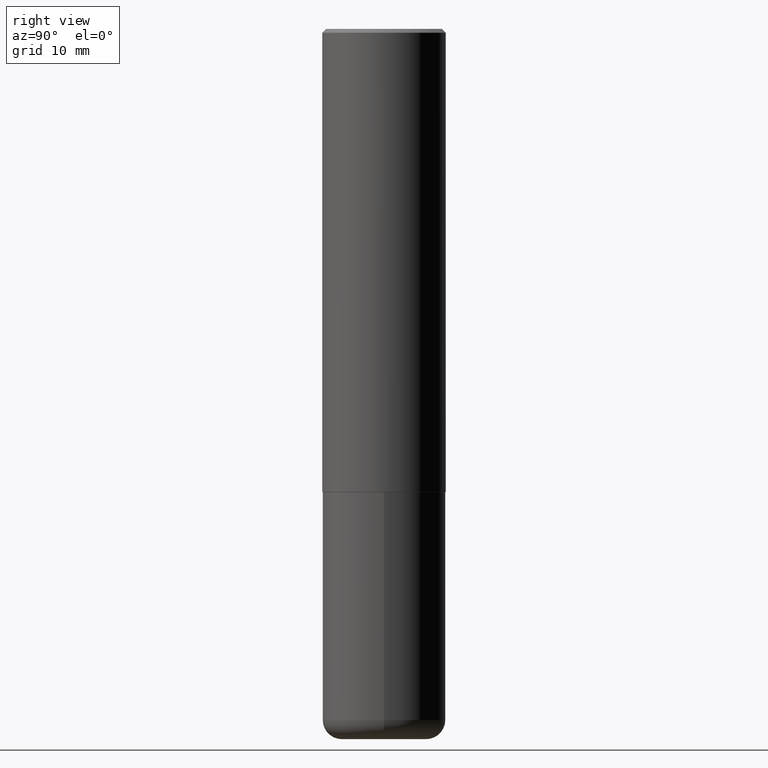
[diagram: clean part render]
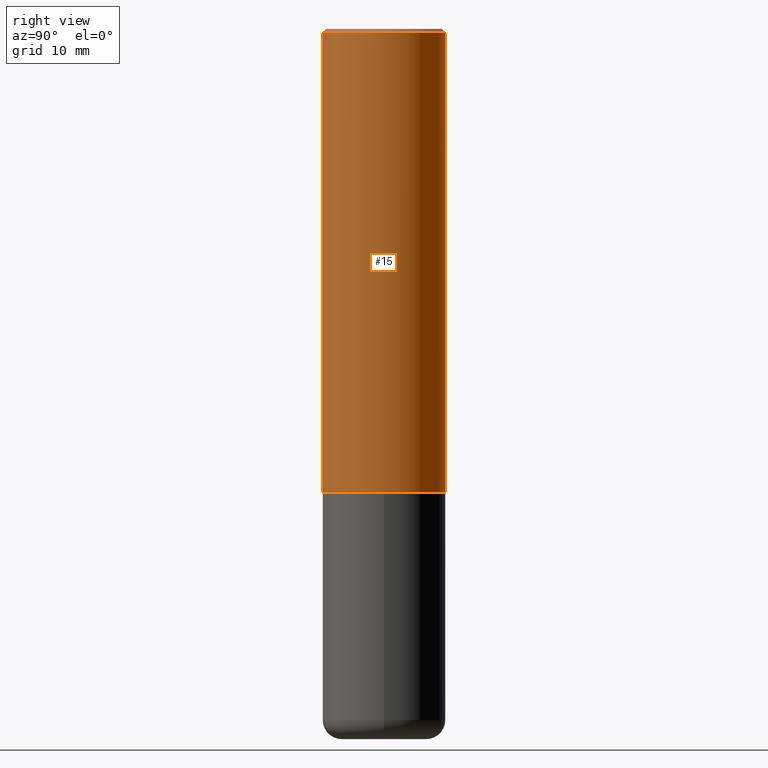
[diagram: same view with one face highlighted and labeled with its STEP entity id]
A machine part, right view. The second image highlights one B-rep face of the part: STEP entity #15.
In plain terms, the highlighted cylindrical surface (partial cylindrical patch) has radius 7.9997 mm, axis along (-0, 0, 1).
Its self-contained STEP definition (entity closure, byte-faithful):
#12 = AXIS2_PLACEMENT_3D ( 'NONE', #286, #190, #358 ) ;
#15 = ADVANCED_FACE ( 'NONE', ( #247 ), #380, .T. ) ;
#19 = CARTESIAN_POINT ( 'NONE',  ( 2.199284095337289871E-15, 0.3149499999999999522, -0.02000000000000116615 ) ) ;
#28 = CARTESIAN_POINT ( 'NONE',  ( -2.199284095337290265E-15, -0.3149500000000001743, 1.098836622389608521E-15 ) ) ;
#38 = ORIENTED_EDGE ( 'NONE', *, *, #308, .F. ) ;
#43 = EDGE_CURVE ( 'NONE', #408, #371, #330, .T. ) ;
#62 = VECTOR ( 'NONE', #377, 39.37007874015748143 ) ;
#70 = AXIS2_PLACEMENT_3D ( 'NONE', #86, #191, #108 ) ;
#86 = CARTESIAN_POINT ( 'NONE',  ( 0.000000000000000000, 0.000000000000000000, 0.000000000000000000 ) ) ;
#103 = CIRCLE ( 'NONE', #12, 0.3149500000000000077 ) ;
#108 = DIRECTION ( 'NONE',  ( -6.982962677686264344E-15, -1.000000000000000000, 3.488924027272925566E-15 ) ) ;
#124 = CARTESIAN_POINT ( 'NONE',  ( -2.199284095337233467E-15, -0.3149500000000085564, -2.361199999999998411 ) ) ;
#130 = EDGE_CURVE ( 'NONE', #371, #279, #183, .T. ) ;
#133 = ORIENTED_EDGE ( 'NONE', *, *, #320, .F. ) ;
#148 = CARTESIAN_POINT ( 'NONE',  ( -2.160713844398143363E-15, -0.3149500000000000632, -0.01999999999999896999 ) ) ;
#156 = DIRECTION ( 'NONE',  ( -2.447254567310142588E-29, 3.488924027272925171E-15, 1.000000000000000000 ) ) ;
#183 = LINE ( 'NONE', #309, #62 ) ;
#185 = LINE ( 'NONE', #28, #248 ) ;
#189 = CARTESIAN_POINT ( 'NONE',  ( 2.237854346276465567E-15, 0.3149499999999920141, -2.361200000000000632 ) ) ;
#190 = DIRECTION ( 'NONE',  ( -2.447254567310142588E-29, 3.488924027272925566E-15, 1.000000000000000000 ) ) ;
#191 = DIRECTION ( 'NONE',  ( -2.447254567310142588E-29, 3.488924027272925566E-15, 1.000000000000000000 ) ) ;
#219 = ORIENTED_EDGE ( 'NONE', *, *, #130, .T. ) ;
#247 = FACE_OUTER_BOUND ( 'NONE', #310, .T. ) ;
#248 = VECTOR ( 'NONE', #156, 39.37007874015748143 ) ;
#259 = CARTESIAN_POINT ( 'NONE',  ( 5.778457484332707712E-29, -8.238047413196831500E-15, -2.361199999999999743 ) ) ;
#268 = DIRECTION ( 'NONE',  ( -6.982962677686265922E-15, -1.000000000000000000, 3.469564049740290009E-15 ) ) ;
#276 = VERTEX_POINT ( 'NONE', #148 ) ;
#279 = VERTEX_POINT ( 'NONE', #19 ) ;
#286 = CARTESIAN_POINT ( 'NONE',  ( 4.894509134620301711E-31, -6.977848054545874748E-17, -0.02000000000000006981 ) ) ;
#293 = AXIS2_PLACEMENT_3D ( 'NONE', #259, #393, #268 ) ;
#308 = EDGE_CURVE ( 'NONE', #408, #276, #185, .T. ) ;
#309 = CARTESIAN_POINT ( 'NONE',  ( 2.237854346276435985E-15, 0.3149500000000001743, -1.098836622389608521E-15 ) ) ;
#310 = EDGE_LOOP ( 'NONE', ( #376, #219, #133, #38 ) ) ;
#320 = EDGE_CURVE ( 'NONE', #276, #279, #103, .T. ) ;
#330 = CIRCLE ( 'NONE', #293, 0.3149500000000002853 ) ;
#358 = DIRECTION ( 'NONE',  ( -6.982962677686265922E-15, -1.000000000000000000, 3.483117034309591132E-15 ) ) ;
#371 = VERTEX_POINT ( 'NONE', #189 ) ;
#376 = ORIENTED_EDGE ( 'NONE', *, *, #43, .T. ) ;
#377 = DIRECTION ( 'NONE',  ( -2.447254567310142588E-29, 3.488924027272925171E-15, 1.000000000000000000 ) ) ;
#380 = CYLINDRICAL_SURFACE ( 'NONE', #70, 0.3149500000000001743 ) ;
#393 = DIRECTION ( 'NONE',  ( -2.447254567310142588E-29, 3.488924027272925566E-15, 1.000000000000000000 ) ) ;
#408 = VERTEX_POINT ( 'NONE', #124 ) ;